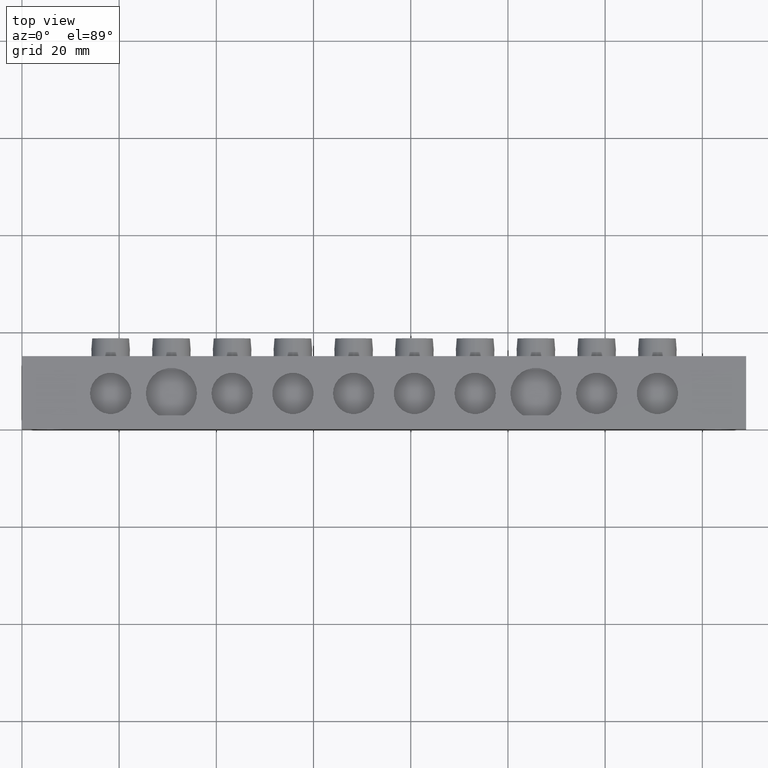
[diagram: clean part render]
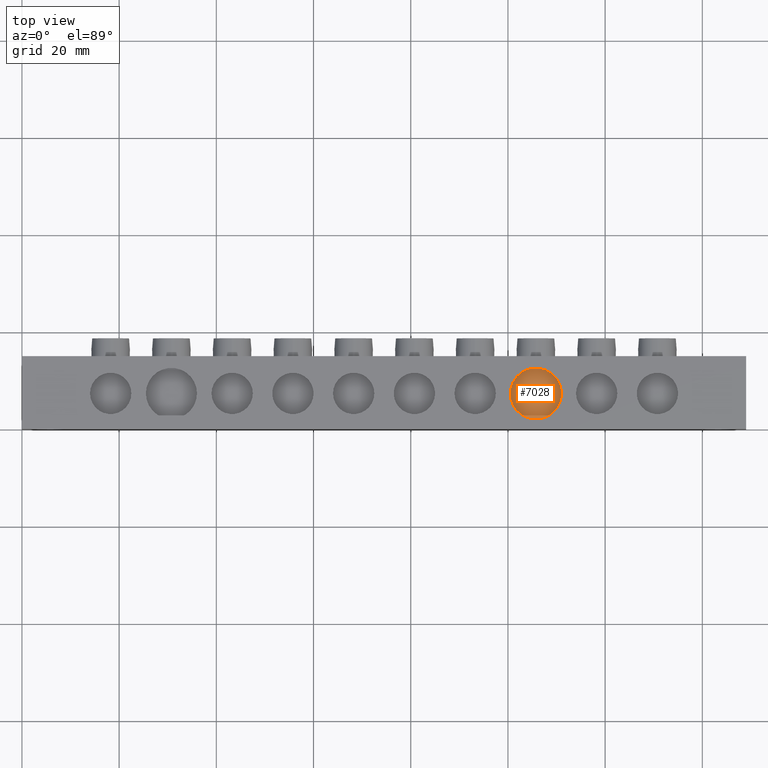
[diagram: same view with one face highlighted and labeled with its STEP entity id]
A machine part, top view. The second image highlights one B-rep face of the part: STEP entity #7028.
In plain terms, the highlighted planar face has unit normal (0, 0, -1).
Its self-contained STEP definition (entity closure, byte-faithful):
#359 = ORIENTED_EDGE ( 'NONE', *, *, #3799, .T. ) ;
#431 = ORIENTED_EDGE ( 'NONE', *, *, #4152, .T. ) ;
#490 = VERTEX_POINT ( 'NONE', #5997 ) ;
#495 = VERTEX_POINT ( 'NONE', #6004 ) ;
#953 = EDGE_LOOP ( 'NONE', ( #431, #359 ) ) ;
#1348 = AXIS2_PLACEMENT_3D ( 'NONE', #4790, #4788, #4791 ) ;
#1381 = CIRCLE ( 'NONE', #1348, 5.250000000000004400 ) ;
#1396 = AXIS2_PLACEMENT_3D ( 'NONE', #4314, #4334, #4335 ) ;
#1813 = DIRECTION ( 'NONE',  ( -1.000000000000000000, 0.0000000000000000000, 0.0000000000000000000 ) ) ;
#1814 = CARTESIAN_POINT ( 'NONE',  ( 105.7500000000000100, 7.300000000000002500, -0.5000000000000004400 ) ) ;
#1819 = DIRECTION ( 'NONE',  ( -0.0000000000000000000, -0.0000000000000000000, 1.000000000000000000 ) ) ;
#2431 = AXIS2_PLACEMENT_3D ( 'NONE', #1814, #1819, #1813 ) ;
#2438 = CIRCLE ( 'NONE', #2431, 5.250000000000004400 ) ;
#3799 = EDGE_CURVE ( 'NONE', #495, #490, #2438, .T. ) ;
#4152 = EDGE_CURVE ( 'NONE', #490, #495, #1381, .T. ) ;
#4310 = PLANE ( 'NONE',  #1396 ) ;
#4313 = FACE_OUTER_BOUND ( 'NONE', #953, .T. ) ;
#4314 = CARTESIAN_POINT ( 'NONE',  ( 137.2026877376128800, 0.5000000000000038900, -0.5000000000000000000 ) ) ;
#4334 = DIRECTION ( 'NONE',  ( 0.0000000000000000000, 0.0000000000000000000, -1.000000000000000000 ) ) ;
#4335 = DIRECTION ( 'NONE',  ( -1.000000000000000000, 0.0000000000000000000, -0.0000000000000000000 ) ) ;
#4788 = DIRECTION ( 'NONE',  ( -0.0000000000000000000, -0.0000000000000000000, 1.000000000000000000 ) ) ;
#4790 = CARTESIAN_POINT ( 'NONE',  ( 105.7500000000000100, 7.300000000000002500, -0.5000000000000004400 ) ) ;
#4791 = DIRECTION ( 'NONE',  ( -1.000000000000000000, 0.0000000000000000000, 0.0000000000000000000 ) ) ;
#5997 = CARTESIAN_POINT ( 'NONE',  ( 111.0000000000000100, 7.300000000000002500, -0.5000000000000004400 ) ) ;
#6004 = CARTESIAN_POINT ( 'NONE',  ( 100.5000000000000000, 7.300000000000003400, -0.5000000000000004400 ) ) ;
#7028 = ADVANCED_FACE ( 'NONE', ( #4313 ), #4310, .F. ) ;